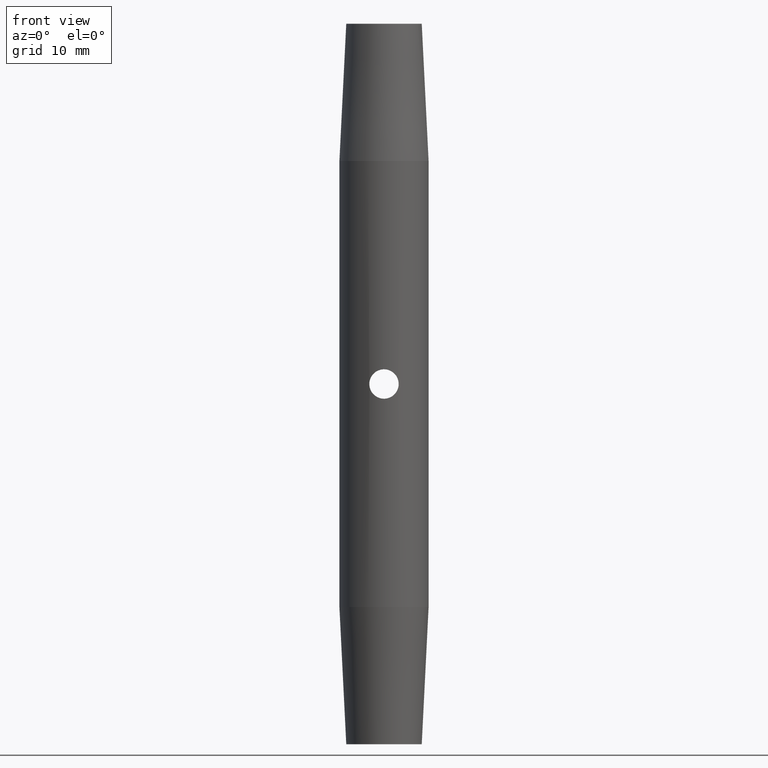
[diagram: clean part render]
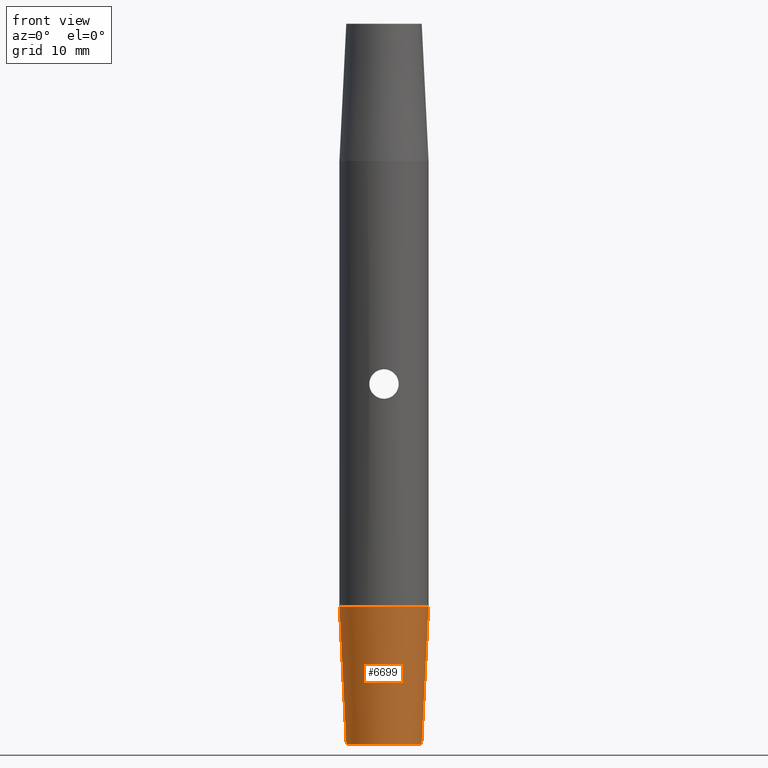
[diagram: same view with one face highlighted and labeled with its STEP entity id]
A machine part, front view. The second image highlights one B-rep face of the part: STEP entity #6699.
In plain terms, the highlighted conical surface has half-angle 2.862 deg.
Its self-contained STEP definition (entity closure, byte-faithful):
#422 = CONICAL_SURFACE ( 'NONE', #6090, 5.500000000000000000, 0.04995839572194237700 ) ;
#706 = EDGE_LOOP ( 'NONE', ( #6414, #2592, #6587, #1582 ) ) ;
#1129 = CARTESIAN_POINT ( 'NONE',  ( -6.499999999999992000, 7.960204194457785600E-016, -32.49999999999999300 ) ) ;
#1337 = VERTEX_POINT ( 'NONE', #7833 ) ;
#1523 = EDGE_CURVE ( 'NONE', #1337, #12534, #3717, .T. ) ;
#1582 = ORIENTED_EDGE ( 'NONE', *, *, #12558, .F. ) ;
#1771 = EDGE_CURVE ( 'NONE', #1337, #5098, #8792, .T. ) ;
#1827 = VERTEX_POINT ( 'NONE', #7687 ) ;
#2592 = ORIENTED_EDGE ( 'NONE', *, *, #1523, .T. ) ;
#3509 = DIRECTION ( 'NONE',  ( -0.0000000000000000000, -0.0000000000000000000, 1.000000000000000000 ) ) ;
#3717 = CIRCLE ( 'NONE', #10829, 5.500000000000000000 ) ;
#3941 = CARTESIAN_POINT ( 'NONE',  ( 0.0000000000000000000, 0.0000000000000000000, -52.50000000000000000 ) ) ;
#4564 = CARTESIAN_POINT ( 'NONE',  ( 0.0000000000000000000, 0.0000000000000000000, -52.50000000000000000 ) ) ;
#5098 = VERTEX_POINT ( 'NONE', #1129 ) ;
#5520 = LINE ( 'NONE', #7767, #6648 ) ;
#5600 = DIRECTION ( 'NONE',  ( -0.04993761694389184400, 6.115594274738376900E-018, 0.9987523388778446500 ) ) ;
#6090 = AXIS2_PLACEMENT_3D ( 'NONE', #4564, #3509, #9594 ) ;
#6414 = ORIENTED_EDGE ( 'NONE', *, *, #1771, .F. ) ;
#6559 = VECTOR ( 'NONE', #5600, 1000.000000000000200 ) ;
#6587 = ORIENTED_EDGE ( 'NONE', *, *, #10567, .T. ) ;
#6648 = VECTOR ( 'NONE', #12794, 1000.000000000000200 ) ;
#6699 = ADVANCED_FACE ( 'NONE', ( #10015 ), #422, .T. ) ;
#7033 = DIRECTION ( 'NONE',  ( -0.0000000000000000000, -0.0000000000000000000, 1.000000000000000000 ) ) ;
#7199 = AXIS2_PLACEMENT_3D ( 'NONE', #7416, #9446, #7505 ) ;
#7416 = CARTESIAN_POINT ( 'NONE',  ( 0.0000000000000000000, 0.0000000000000000000, -32.49999999999999300 ) ) ;
#7505 = DIRECTION ( 'NONE',  ( 1.000000000000000000, 0.0000000000000000000, 0.0000000000000000000 ) ) ;
#7687 = CARTESIAN_POINT ( 'NONE',  ( 6.499999999999992000, 0.0000000000000000000, -32.49999999999999300 ) ) ;
#7767 = CARTESIAN_POINT ( 'NONE',  ( 5.500000000000000000, 0.0000000000000000000, -52.50000000000000000 ) ) ;
#7833 = CARTESIAN_POINT ( 'NONE',  ( -5.500000000000000000, 7.347880794884114800E-016, -52.50000000000000000 ) ) ;
#8792 = LINE ( 'NONE', #9712, #6559 ) ;
#9090 = DIRECTION ( 'NONE',  ( 1.000000000000000000, 0.0000000000000000000, 0.0000000000000000000 ) ) ;
#9446 = DIRECTION ( 'NONE',  ( -0.0000000000000000000, -0.0000000000000000000, 1.000000000000000000 ) ) ;
#9594 = DIRECTION ( 'NONE',  ( 1.000000000000000000, 0.0000000000000000000, 0.0000000000000000000 ) ) ;
#9712 = CARTESIAN_POINT ( 'NONE',  ( -5.500000000000000000, 6.735557395310442000E-016, -52.50000000000000000 ) ) ;
#10015 = FACE_OUTER_BOUND ( 'NONE', #706, .T. ) ;
#10567 = EDGE_CURVE ( 'NONE', #12534, #1827, #5520, .T. ) ;
#10756 = CIRCLE ( 'NONE', #7199, 6.499999999999992000 ) ;
#10829 = AXIS2_PLACEMENT_3D ( 'NONE', #3941, #7033, #9090 ) ;
#12254 = CARTESIAN_POINT ( 'NONE',  ( 5.500000000000000000, 0.0000000000000000000, -52.50000000000000000 ) ) ;
#12534 = VERTEX_POINT ( 'NONE', #12254 ) ;
#12558 = EDGE_CURVE ( 'NONE', #5098, #1827, #10756, .T. ) ;
#12794 = DIRECTION ( 'NONE',  ( 0.04993761694389184400, 0.0000000000000000000, 0.9987523388778446500 ) ) ;